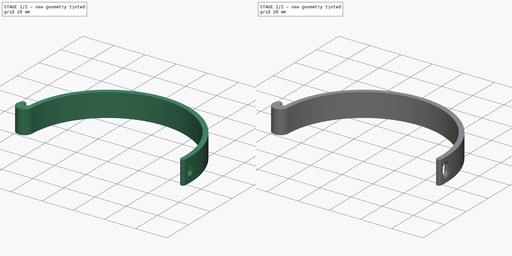
[diagram: build sequence overview — one tinted view per stage of 2, left to right]
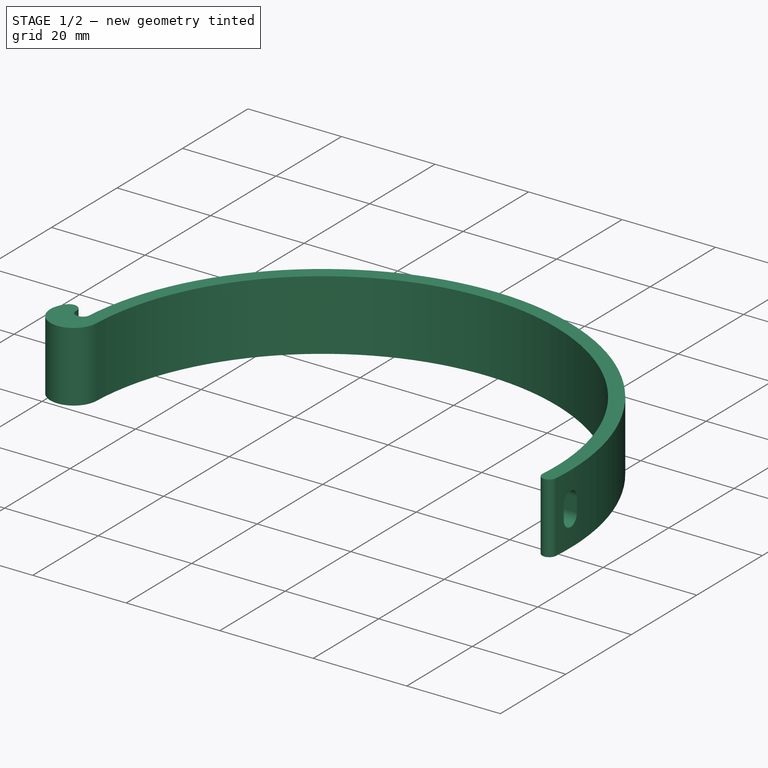
[diagram: stage 1 of 2 — iso view after this stage's code; geometry added in this stage tinted green]
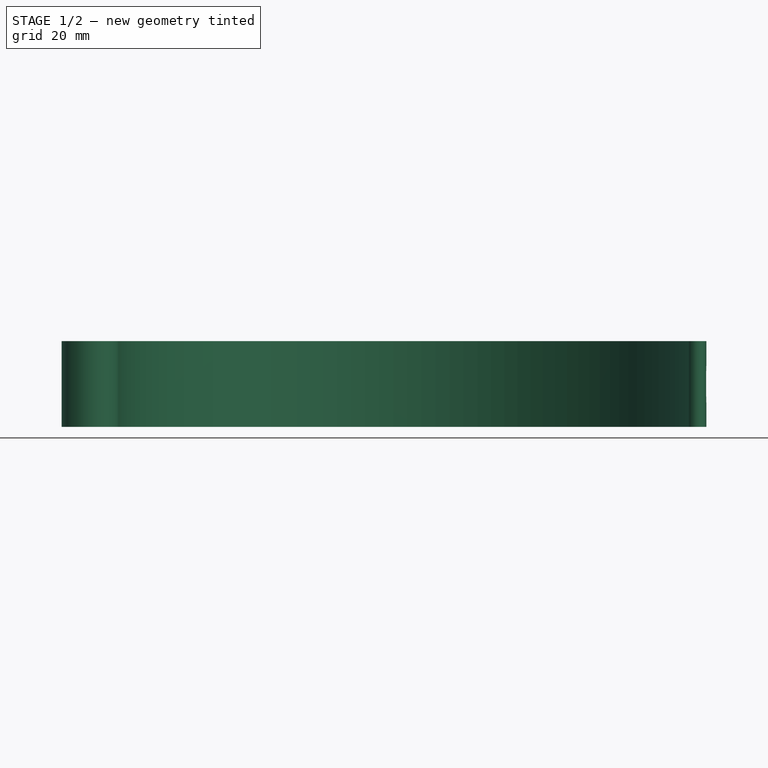
[diagram: stage 1 of 2 — front view after this stage's code; geometry added in this stage tinted green]
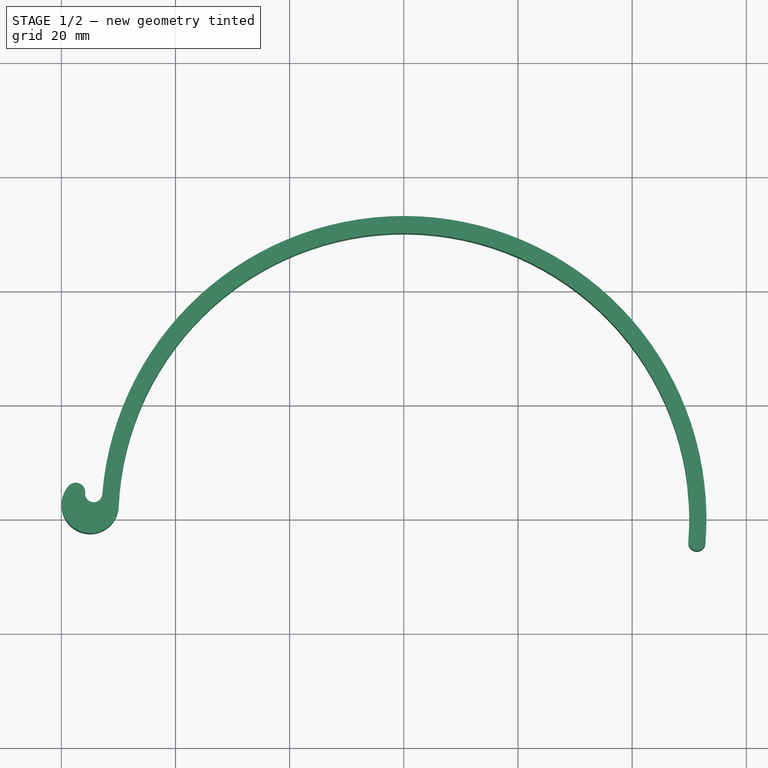
[diagram: stage 1 of 2 — top view after this stage's code; geometry added in this stage tinted green]
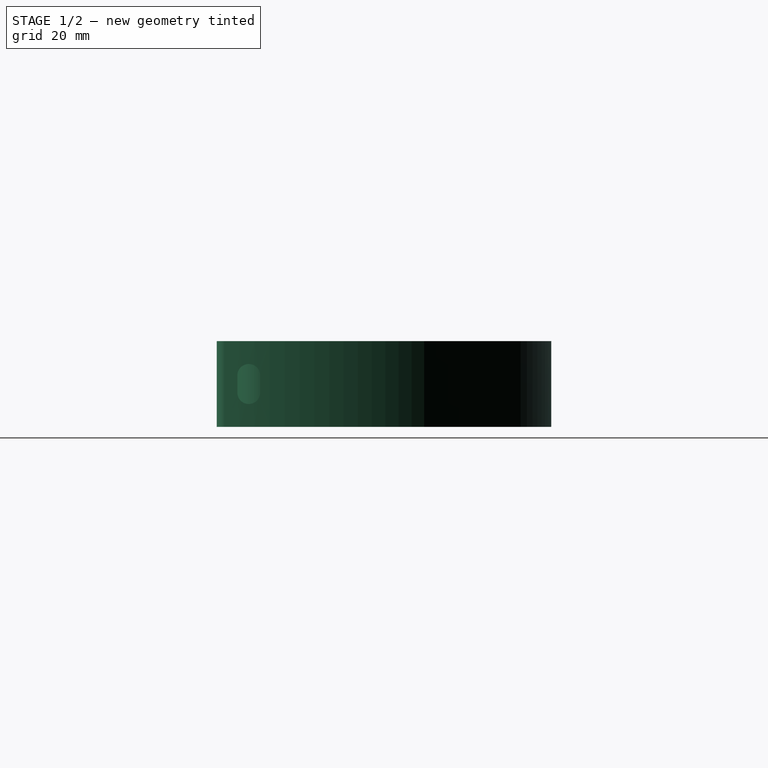
[diagram: stage 1 of 2 — right view after this stage's code; geometry added in this stage tinted green]
FCSTD DOCUMENT  (FreeCAD 0.20R29410 (Git))
Label: ThrousersClamp
License: All rights reserved
LicenseURL: http://en.wikipedia.org/wiki/All_rights_reserved
objects: Sketcher::SketchObject×2, PartDesign::Pad×1, PartDesign::Pocket×1, PartDesign::Fillet×1, PartDesign::Body×1
note: 9 computed .brp shape members not serialized (recipe doc carries the construction recipe); baked Part::Feature solids carry a one-line shape summary decoded from their .brp

FEATURE [Sketcher::SketchObject] Sketch
  FullyConstrained = true
  MapMode = 5
  Support = -> [XY_Plane]
  expr: Constraints[8] = .Constraints.Inner + 3mm
  sketch-geometry (9):
    g0: LineSegment StartX=-1.4629e-12 StartY=6.29e-14 StartZ=0 EndX=-52.8304 EndY=4.23661 EndZ=0
    g1: LineSegment StartX=-1.4629e-12 StartY=6.29e-14 StartZ=0 EndX=49.84 EndY=-3.9968 EndZ=0
    g2: ArcOfCircle CenterX=-1.4629e-12 CenterY=6.29e-14 CenterZ=0 NormalX=0 NormalY=0 NormalZ=1 AngleXU=0 Radius=50 StartAngle=6.20316 EndAngle=9.38013
    g3: ArcOfCircle CenterX=-1.4629e-12 CenterY=6.29e-14 CenterZ=0 NormalX=0 NormalY=0 NormalZ=1 AngleXU=0 Radius=53 StartAngle=6.20316 EndAngle=9.34476
    g4: ArcOfCircle CenterX=51.3352 CenterY=-4.1167 CenterZ=0 NormalX=0 NormalY=0 NormalZ=1 AngleXU=0 Radius=1.5 StartAngle=3.06157 EndAngle=6.20316
    g5: ArcOfCircle CenterX=-54.3256 CenterY=4.35649 CenterZ=0 NormalX=0 NormalY=0 NormalZ=1 AngleXU=0 Radius=1.5 StartAngle=3.06156 EndAngle=6.20318
    g6: LineSegment StartX=50 StartY=-3.65e-14 StartZ=0 EndX=53 EndY=-3.65e-14 EndZ=0
    g7: ArcOfCircle CenterX=-54.9452 CenterY=2.45488 CenterZ=0 NormalX=0 NormalY=0 NormalZ=1 AngleXU=0 Radius=5 StartAngle=2.43793 EndAngle=6.23854
    g8: ArcOfCircle CenterX=-57.4848 CenterY=4.60988 CenterZ=0 NormalX=0 NormalY=0 NormalZ=1 AngleXU=0 Radius=1.66931 StartAngle=6.20315 EndAngle=8.72112
  constraints (27):
    c: Radius(g2) = 50  'Inner'
    c: PointOnObject(g3,g1)
    c: PointOnObject(g4,g1)
    c: Coincident(g4,g2)
    c: Coincident(g4,g3)
    c: Coincident(g0,g3)
    c: Coincident(g5,g0)
    c: Radius(g5) = 1.5  'R'
    c: Radius(g3) = 53
    c: Tangent(g5,g3)
    c: Angle(g1,g0) = 3.14159
    c: Coincident(g0,g2)
    c: Coincident(g0,g1)
    c: Coincident(g0,g3)
    c: Coincident(g1,g2)
    c: PointOnObject(g6,g2)
    c: PointOnObject(g6,g3)
    c: Distance(g6,g2) = 4
    c: PointOnObject(g2,g6)
    c: Horizontal(g6)
    c: Coincident(g2,g-1)  '__ANCHOR__'
    c: Tangent(g7,g2) = 1.5708
    c: Distance(g7,g5) = 2
    c: Radius(g7) = 5
    c: PointOnObject(g5,g0)
    c: Tangent(g8,g5) = 1.5708
    c: Tangent(g8,g7) = -1.5708
FEATURE [PartDesign::Pad] Pad
  Direction = (0,0,1)
  Length = 15
  Length2 = 10
  Profile = -> Sketch
  ReferenceAxis = -> Sketch [N_Axis]
  Type = 0
FEATURE [Sketcher::SketchObject] Sketch001
  FullyConstrained = true
  MapMode = 5
  Placement = pos=(0,0,0) rot=(0.57735,0.57735,0.57735;2.0944rad)
  Support = -> [YZ_Plane]
  expr: Constraints[10] = Pad.Length / 2
  sketch-geometry (5):
    g0: ArcOfCircle CenterX=0 CenterY=9 CenterZ=0 NormalX=0 NormalY=0 NormalZ=1 AngleXU=0 Radius=2 StartAngle=-2.62199e-11 EndAngle=3.14159
    g1: ArcOfCircle CenterX=0 CenterY=6 CenterZ=0 NormalX=0 NormalY=0 NormalZ=1 AngleXU=0 Radius=2 StartAngle=3.14159 EndAngle=6.28319
    g2: LineSegment StartX=-2 StartY=9 StartZ=0 EndX=-2 EndY=6 EndZ=0
    g3: LineSegment StartX=2 StartY=6 StartZ=0 EndX=2 EndY=9 EndZ=0
    g4: GeomPoint X=0 Y=7.5 Z=0
  constraints (11):
    c: Tangent(g0,g2) = -1.5708
    c: Tangent(g2,g1) = -1.5708
    c: Tangent(g1,g3) = -1.5708
    c: Tangent(g3,g0) = -1.5708
    c: Equal(g0,g1)
    c: PointOnObject(g0,g-2)
    c: PointOnObject(g1,g-2)
    c: Radius(g0) = 2
    c: DistanceY(g2,g2) = 3
    c: Symmetric(g0,g1,g4)
    c: DistanceY(g-1,g4) = 7.5
FEATURE [PartDesign::Pocket] Pocket
  BaseFeature = -> Pad
  Direction = (-1,2e-16,-3e-16)
  Length = 5
  Length2 = 5
  Profile = -> Sketch001
  ReferenceAxis = -> Sketch001 [N_Axis]
  Reversed = true
  Type = 1
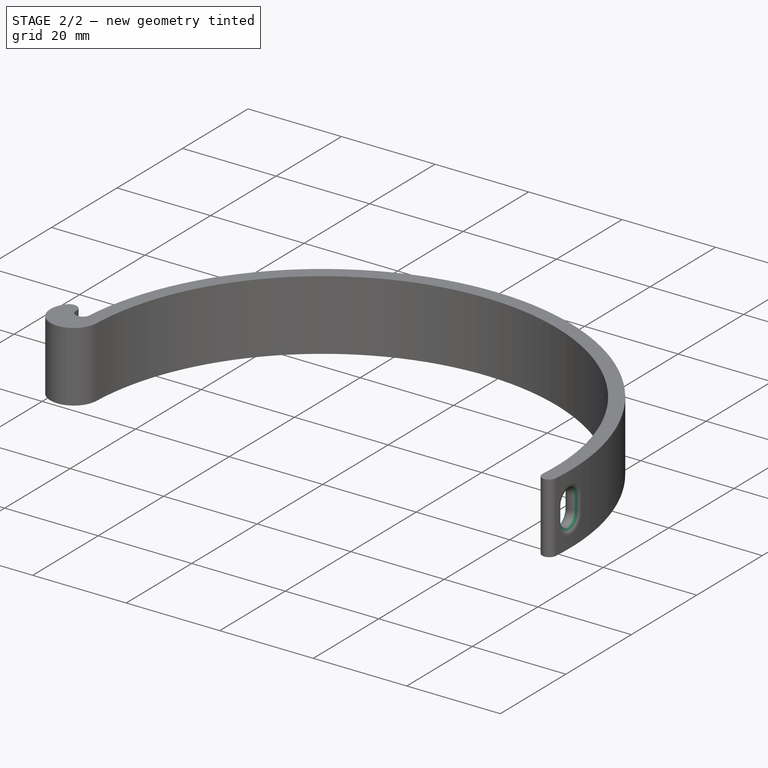
[diagram: stage 2 of 2 — iso view after this stage's code; geometry added in this stage tinted green]
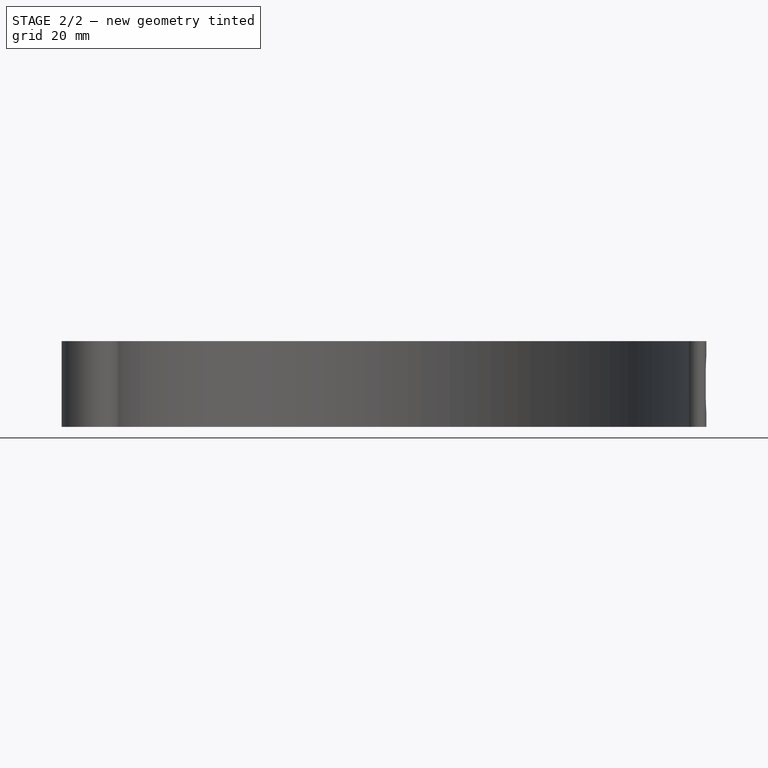
[diagram: stage 2 of 2 — front view after this stage's code; geometry added in this stage tinted green]
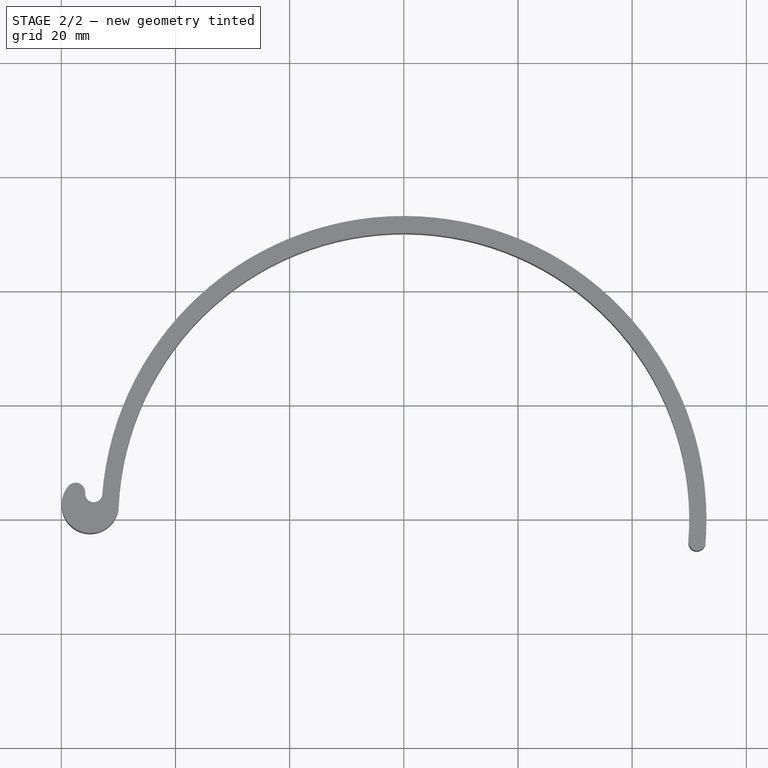
[diagram: stage 2 of 2 — top view after this stage's code; geometry added in this stage tinted green]
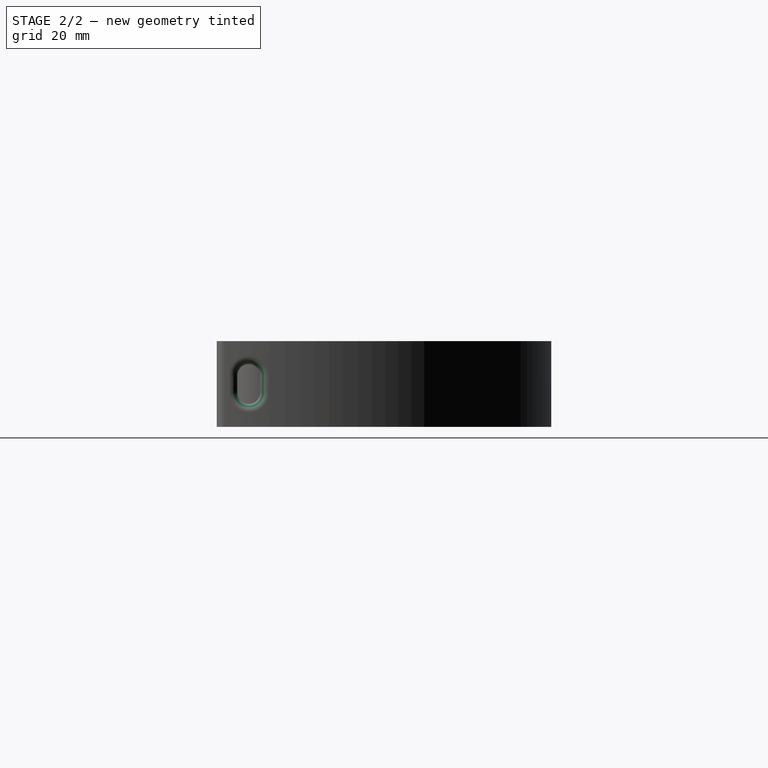
[diagram: stage 2 of 2 — right view after this stage's code; geometry added in this stage tinted green]
FEATURE [PartDesign::Fillet] Fillet
  Base = -> Pocket [Edge17,Edge8]
  BaseFeature = -> Pocket
  Radius = 1.4
  SupportTransform = false
  UseAllEdges = false
FEATURE [PartDesign::Body] Body
  Group = -> [Sketch,Pad,Sketch001,Pocket,Fillet]
  Origin = -> Origin
  Tip = -> Fillet
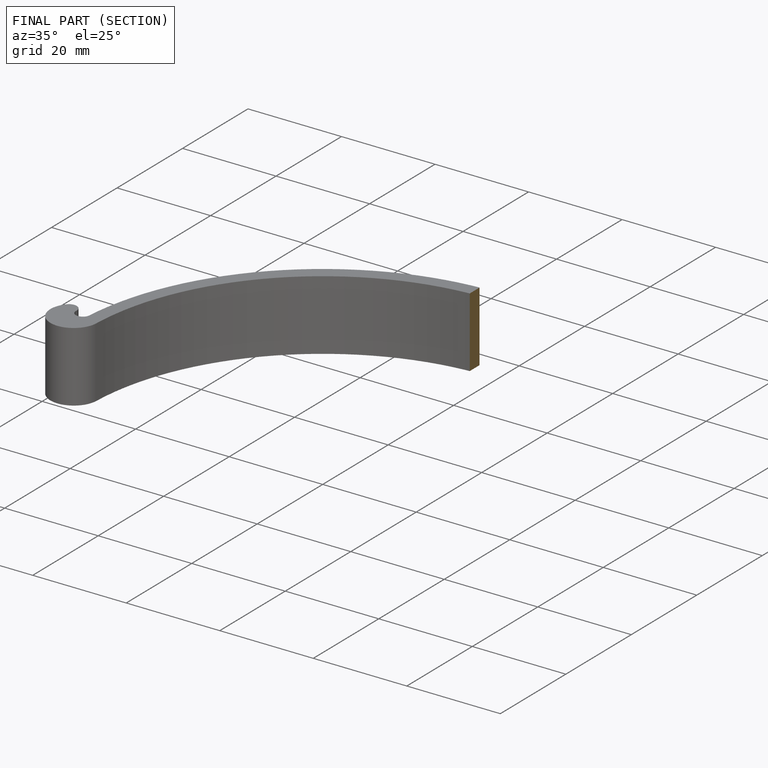
[diagram: finished part — half-section view (interior)]
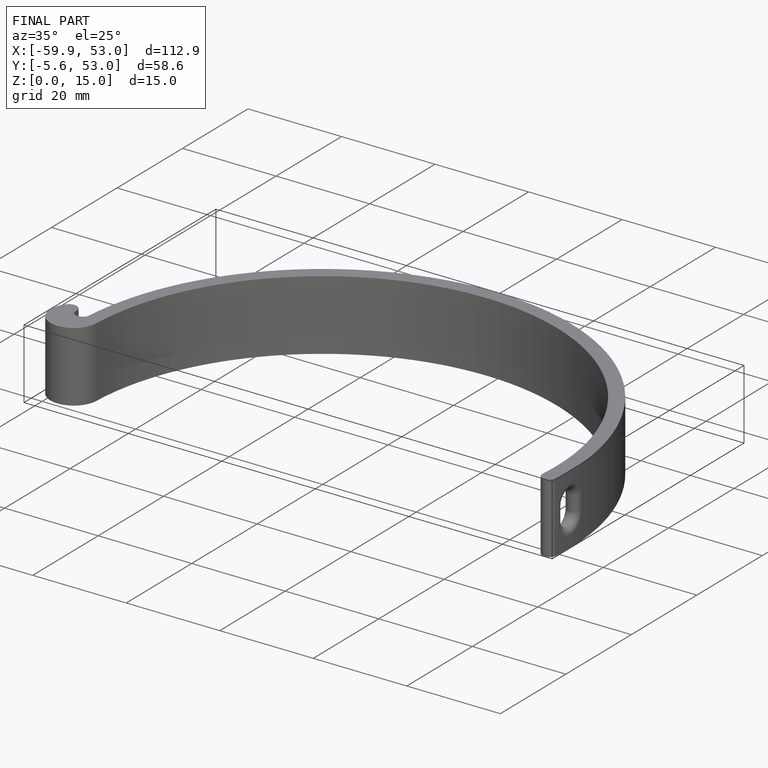
[diagram: finished part — iso view with bounding-box wireframe]
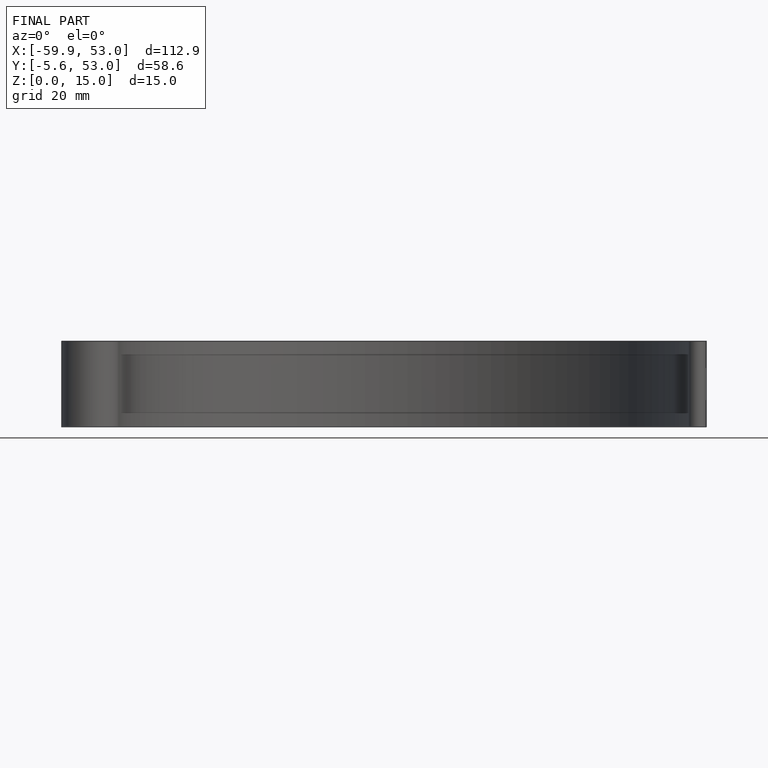
[diagram: finished part — front view with bounding-box wireframe]
